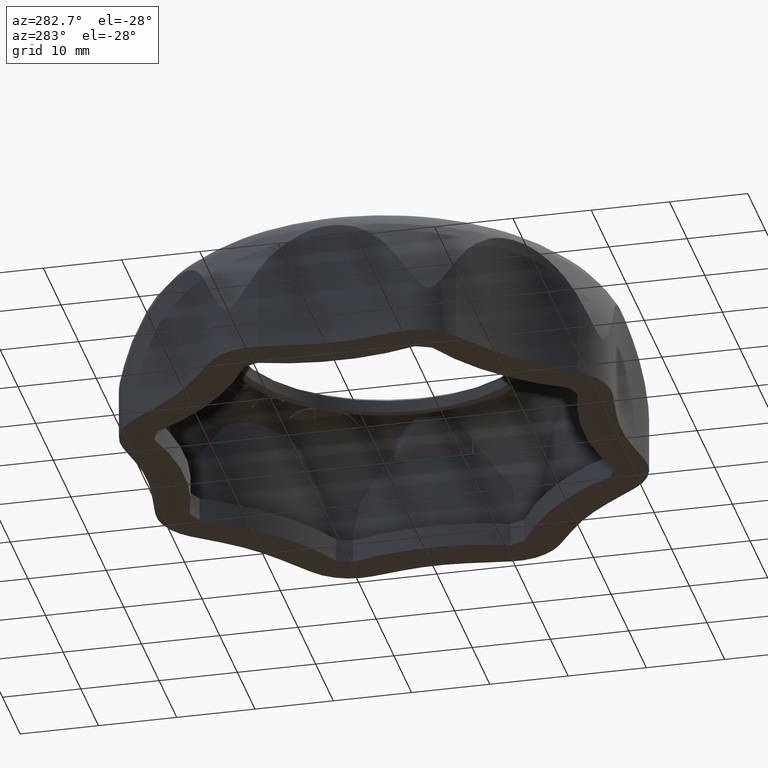
[diagram: clean part render]
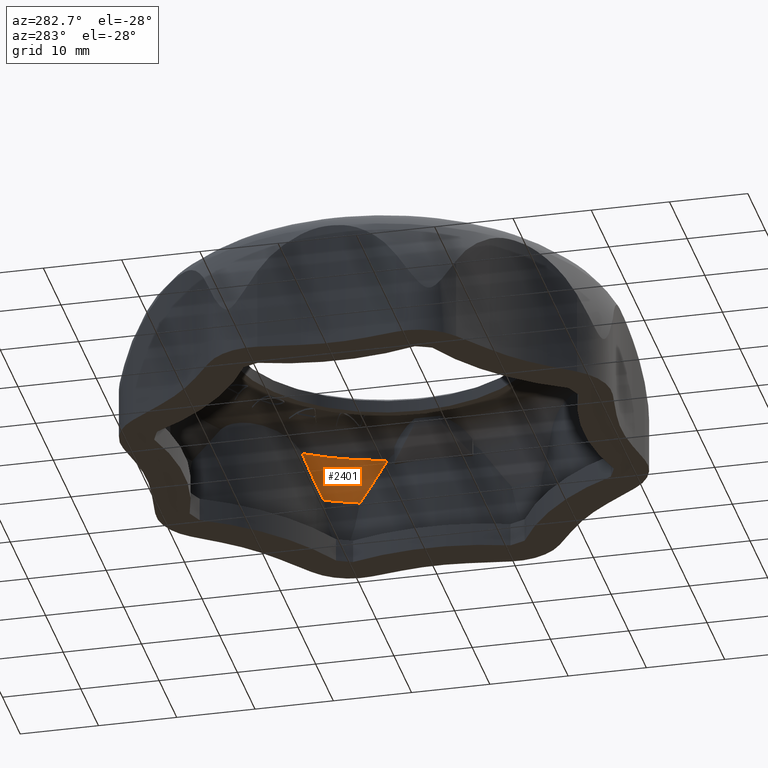
[diagram: same view with one face highlighted and labeled with its STEP entity id]
A machine part, auxiliary view. The second image highlights one B-rep face of the part: STEP entity #2401.
In plain terms, the highlighted conical surface has half-angle 19.067 deg.
Its self-contained STEP definition (entity closure, byte-faithful):
#2401 = ADVANCED_FACE( '', ( #7106 ), #7107, .F. );
#7106 = FACE_OUTER_BOUND( '', #11841, .T. );
#7107 = CONICAL_SURFACE( '', #11842, 31.0000000000000, 0.332788203392473 );
#11841 = EDGE_LOOP( '', ( #32788, #32789, #32790, #32791, #32792, #32793 ) );
#11842 = AXIS2_PLACEMENT_3D( '', #32794, #32795, #32796 );
#32788 = ORIENTED_EDGE( '', *, *, #39946, .T. );
#32789 = ORIENTED_EDGE( '', *, *, #33487, .T. );
#32790 = ORIENTED_EDGE( '', *, *, #39957, .T. );
#32791 = ORIENTED_EDGE( '', *, *, #39950, .T. );
#32792 = ORIENTED_EDGE( '', *, *, #39974, .F. );
#32793 = ORIENTED_EDGE( '', *, *, #39943, .T. );
#32794 = CARTESIAN_POINT( '', ( 0.000000000000000, 0.000000000000000, 9.49996116138760 ) );
#32795 = DIRECTION( '', ( -2.34318281388423E-017, 5.65694372839885E-017, -1.00000000000000 ) );
#32796 = DIRECTION( '', ( -0.382683432365090, 0.923879532511287, 6.12303176911189E-017 ) );
#33487 = EDGE_CURVE( '', #40823, #40821, #40824, .T. );
#39943 = EDGE_CURVE( '', #51525, #51523, #51526, .T. );
#39946 = EDGE_CURVE( '', #51523, #40823, #51530, .T. );
#39950 = EDGE_CURVE( '', #51536, #51533, #51537, .T. );
#39957 = EDGE_CURVE( '', #40821, #51536, #51549, .T. );
#39974 = EDGE_CURVE( '', #51525, #51533, #51574, .T. );
#40821 = VERTEX_POINT( '', #53883 );
#40823 = VERTEX_POINT( '', #53906 );
#40824 = CIRCLE( '', #53907, 29.2256761474118 );
#51523 = VERTEX_POINT( '', #80845 );
#51525 = VERTEX_POINT( '', #80848 );
#51526 = B_SPLINE_CURVE_WITH_KNOTS( '', 3, ( #80849, #80850, #80851, #80852, #80853, #80854 ), .UNSPECIFIED., .F., .F., ( 4, 2, 4 ), ( 2.74166396076648E-007, 0.000977178983244356, 0.00195408380009264 ), .UNSPECIFIED. );
#51530 = B_SPLINE_CURVE_WITH_KNOTS( '', 3, ( #80875, #80876, #80877, #80878, #80879, #80880 ), .UNSPECIFIED., .F., .F., ( 4, 2, 4 ), ( 4.77719126340585E-007, 0.00221967505293777, 0.00443887238674921 ), .UNSPECIFIED. );
#51533 = VERTEX_POINT( '', #80888 );
#51536 = VERTEX_POINT( '', #80908 );
#51537 = B_SPLINE_CURVE_WITH_KNOTS( '', 3, ( #80909, #80910, #80911, #80912, #80913, #80914 ), .UNSPECIFIED., .F., .F., ( 4, 2, 4 ), ( 4.76181368579230E-007, 0.000977735368554422, 0.00195499455574026 ), .UNSPECIFIED. );
#51549 = B_SPLINE_CURVE_WITH_KNOTS( '', 3, ( #80950, #80951, #80952, #80953, #80954, #80955 ), .UNSPECIFIED., .F., .F., ( 4, 2, 4 ), ( 2.64352324655140E-007, 0.00221910612001837, 0.00443794788771208 ), .UNSPECIFIED. );
#51574 = CIRCLE( '', #81041, 31.0000000000000 );
#53883 = CARTESIAN_POINT( '', ( 24.4641030057263, 15.9889899921920, 14.6333583801573 ) );
#53906 = CARTESIAN_POINT( '', ( 28.6046564600754, 5.99281028186678, 14.6333587349022 ) );
#53907 = AXIS2_PLACEMENT_3D( '', #81391, #81392, #81393 );
#80845 = CARTESIAN_POINT( '', ( 29.2411382259632, 8.53978144038090, 11.0546472202547 ) );
#80848 = CARTESIAN_POINT( '', ( 29.4413326386370, 9.70607708918037, 9.49996116138760 ) );
#80849 = CARTESIAN_POINT( '', ( 29.4413326386372, 9.70607708918045, 9.49996116138768 ) );
#80850 = CARTESIAN_POINT( '', ( 29.4296666076566, 9.47922292279841, 9.73751059010155 ) );
#80851 = CARTESIAN_POINT( '', ( 29.4039861247470, 9.27304488790372, 9.98876598882228 ) );
#80852 = CARTESIAN_POINT( '', ( 29.3348699135340, 8.88761478425879, 10.5091894928918 ) );
#80853 = CARTESIAN_POINT( '', ( 29.2912619147848, 8.70860736683560, 10.7785189450191 ) );
#80854 = CARTESIAN_POINT( '', ( 29.2411382259635, 8.53978144038086, 11.0546472202547 ) );
#80875 = CARTESIAN_POINT( '', ( 29.2411382259635, 8.53978144038092, 11.0546472202547 ) );
#80876 = CARTESIAN_POINT( '', ( 29.1276380776042, 8.15755442984166, 11.6798616498550 ) );
#80877 = CARTESIAN_POINT( '', ( 29.0173923763498, 7.75871130626379, 12.2938292487123 ) );
#80878 = CARTESIAN_POINT( '', ( 28.8046622453305, 6.91530179852771, 13.4906036883000 ) );
#80879 = CARTESIAN_POINT( '', ( 28.7021472575473, 6.47101256281937, 14.0736023400039 ) );
#80880 = CARTESIAN_POINT( '', ( 28.6046564600755, 5.99281028186688, 14.6333587349023 ) );
#80888 = CARTESIAN_POINT( '', ( 27.6813988844279, 13.9549330274703, 9.49996116138760 ) );
#80908 = CARTESIAN_POINT( '', ( 26.7148075345503, 14.6382524275401, 11.0552482203485 ) );
#80909 = CARTESIAN_POINT( '', ( 26.7148075345503, 14.6382524275403, 11.0552482203484 ) );
#80910 = CARTESIAN_POINT( '', ( 26.8696799924953, 14.5543046023323, 10.7790109095150 ) );
#80911 = CARTESIAN_POINT( '', ( 27.0271462979022, 14.4585438450967, 10.5095755633236 ) );
#80912 = CARTESIAN_POINT( '', ( 27.3486707107393, 14.2348189295555, 9.98894991232970 ) );
#80913 = CARTESIAN_POINT( '', ( 27.5126775538269, 14.1071500260137, 9.73759802940759 ) );
#80914 = CARTESIAN_POINT( '', ( 27.6813988844281, 13.9549330274703, 9.49996116138768 ) );
#80950 = CARTESIAN_POINT( '', ( 24.4641033701942, 15.9889897511658, 14.6333587004010 ) );
#80951 = CARTESIAN_POINT( '', ( 24.8711142221347, 15.7198294803467, 14.0736925456602 ) );
#80952 = CARTESIAN_POINT( '', ( 25.2577042872322, 15.4781931000543, 13.4907911424621 ) );
#80953 = CARTESIAN_POINT( '', ( 26.0043969145425, 15.0322945675447, 12.2942185341483 ) );
#80954 = CARTESIAN_POINT( '', ( 26.3643252301856, 14.8282498491513, 11.6803556440297 ) );
#80955 = CARTESIAN_POINT( '', ( 26.7148075345503, 14.6382524275402, 11.0552482203485 ) );
#81041 = AXIS2_PLACEMENT_3D( '', #83694, #83695, #83696 );
#81391 = CARTESIAN_POINT( '', ( 0.000000000000000, 0.000000000000000, 14.6333587349022 ) );
#81392 = DIRECTION( '', ( 2.34318281388423E-017, -5.65694372839885E-017, 1.00000000000000 ) );
#81393 = DIRECTION( '', ( 0.382683432365090, -0.923879532511287, -6.12303176911189E-017 ) );
#83694 = CARTESIAN_POINT( '', ( 0.000000000000000, 0.000000000000000, 9.49996116138760 ) );
#83695 = DIRECTION( '', ( 2.34318281388423E-017, -5.65694372839885E-017, 1.00000000000000 ) );
#83696 = DIRECTION( '', ( 0.382683432365090, -0.923879532511287, -6.12303176911189E-017 ) );